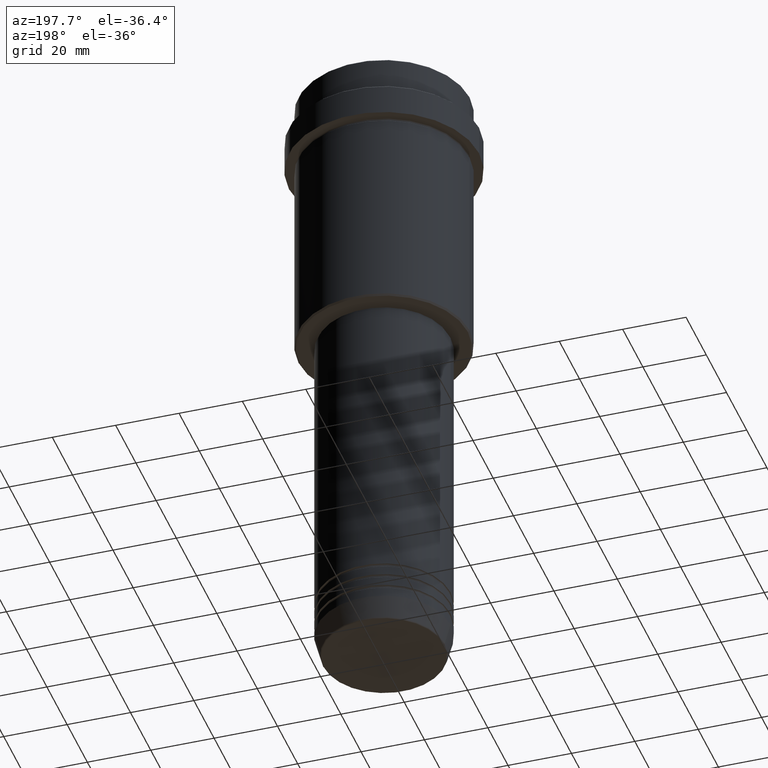
[diagram: clean part render]
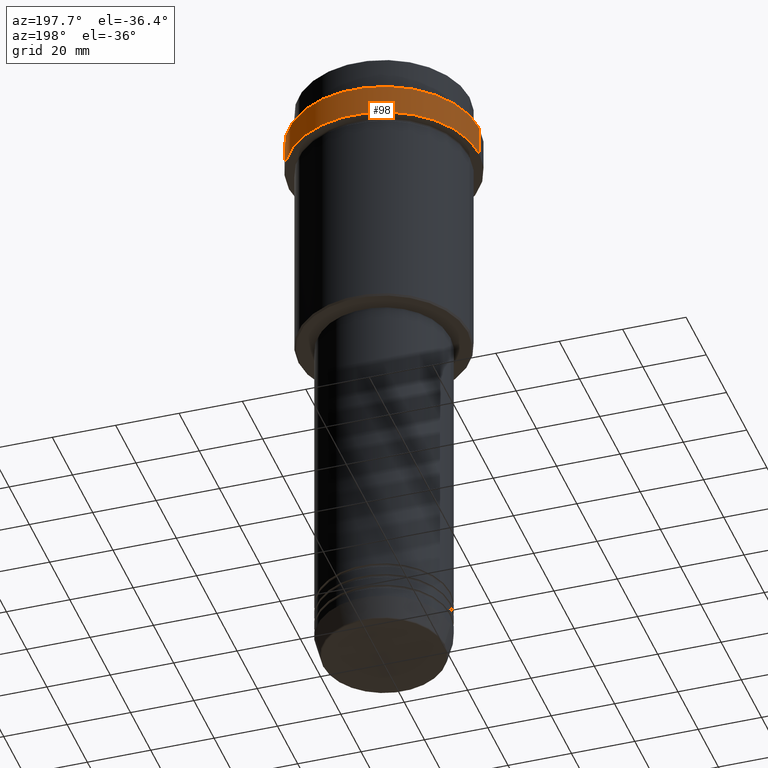
[diagram: same view with one face highlighted and labeled with its STEP entity id]
A machine part, auxiliary view. The second image highlights one B-rep face of the part: STEP entity #98.
In plain terms, the highlighted cylindrical surface (partial cylindrical patch) has radius 30 mm, axis along (-0, -0, 1).
Its self-contained STEP definition (entity closure, byte-faithful):
#46 = DIRECTION ( 'NONE',  ( 1.000000000000000000, 0.000000000000000000, 0.000000000000000000 ) ) ;
#54 = DIRECTION ( 'NONE',  ( -0.000000000000000000, -0.000000000000000000, 1.000000000000000000 ) ) ;
#98 = ADVANCED_FACE ( 'NONE', ( #316 ), #1417, .T. ) ;
#217 = AXIS2_PLACEMENT_3D ( 'NONE', #706, #385, #46 ) ;
#228 = EDGE_CURVE ( 'NONE', #258, #722, #665, .T. ) ;
#245 = EDGE_CURVE ( 'NONE', #741, #722, #609, .T. ) ;
#258 = VERTEX_POINT ( 'NONE', #812 ) ;
#272 = CARTESIAN_POINT ( 'NONE',  ( 30.00000000000000000, 0.000000000000000000, 0.000000000000000000 ) ) ;
#316 = FACE_OUTER_BOUND ( 'NONE', #436, .T. ) ;
#367 = CARTESIAN_POINT ( 'NONE',  ( 0.000000000000000000, 0.000000000000000000, -12.50000000000003730 ) ) ;
#385 = DIRECTION ( 'NONE',  ( -0.000000000000000000, -0.000000000000000000, 1.000000000000000000 ) ) ;
#408 = ORIENTED_EDGE ( 'NONE', *, *, #228, .T. ) ;
#436 = EDGE_LOOP ( 'NONE', ( #645, #1231, #408, #783 ) ) ;
#446 = DIRECTION ( 'NONE',  ( 1.000000000000000000, 0.000000000000000000, 0.000000000000000000 ) ) ;
#454 = AXIS2_PLACEMENT_3D ( 'NONE', #367, #920, #498 ) ;
#481 = LINE ( 'NONE', #917, #491 ) ;
#483 = EDGE_CURVE ( 'NONE', #741, #1023, #587, .T. ) ;
#491 = VECTOR ( 'NONE', #54, 1000.000000000000000 ) ;
#498 = DIRECTION ( 'NONE',  ( 1.000000000000000000, 0.000000000000000000, 0.000000000000000000 ) ) ;
#554 = EDGE_CURVE ( 'NONE', #1023, #258, #481, .T. ) ;
#587 = CIRCLE ( 'NONE', #217, 29.99999999999999645 ) ;
#609 = LINE ( 'NONE', #272, #641 ) ;
#641 = VECTOR ( 'NONE', #926, 1000.000000000000000 ) ;
#645 = ORIENTED_EDGE ( 'NONE', *, *, #483, .T. ) ;
#665 = CIRCLE ( 'NONE', #454, 30.00000000000000000 ) ;
#706 = CARTESIAN_POINT ( 'NONE',  ( 0.000000000000000000, 0.000000000000000000, -22.00000000000000355 ) ) ;
#722 = VERTEX_POINT ( 'NONE', #1143 ) ;
#741 = VERTEX_POINT ( 'NONE', #827 ) ;
#765 = CARTESIAN_POINT ( 'NONE',  ( 0.000000000000000000, 0.000000000000000000, 0.000000000000000000 ) ) ;
#783 = ORIENTED_EDGE ( 'NONE', *, *, #245, .F. ) ;
#812 = CARTESIAN_POINT ( 'NONE',  ( -30.00000000000000000, 3.673940397442059178E-15, -12.50000000000003730 ) ) ;
#827 = CARTESIAN_POINT ( 'NONE',  ( 29.99999999999999645, 0.000000000000000000, -22.00000000000000355 ) ) ;
#917 = CARTESIAN_POINT ( 'NONE',  ( -30.00000000000000000, 3.673940397442059178E-15, 0.000000000000000000 ) ) ;
#920 = DIRECTION ( 'NONE',  ( 0.000000000000000000, 0.000000000000000000, -1.000000000000000000 ) ) ;
#926 = DIRECTION ( 'NONE',  ( -0.000000000000000000, -0.000000000000000000, 1.000000000000000000 ) ) ;
#991 = CARTESIAN_POINT ( 'NONE',  ( -29.99999999999999645, 3.673940397442058389E-15, -22.00000000000000355 ) ) ;
#1023 = VERTEX_POINT ( 'NONE', #991 ) ;
#1090 = AXIS2_PLACEMENT_3D ( 'NONE', #765, #1189, #446 ) ;
#1143 = CARTESIAN_POINT ( 'NONE',  ( 30.00000000000000000, 0.000000000000000000, -12.50000000000003730 ) ) ;
#1189 = DIRECTION ( 'NONE',  ( -0.000000000000000000, -0.000000000000000000, 1.000000000000000000 ) ) ;
#1231 = ORIENTED_EDGE ( 'NONE', *, *, #554, .T. ) ;
#1417 = CYLINDRICAL_SURFACE ( 'NONE', #1090, 30.00000000000000000 ) ;